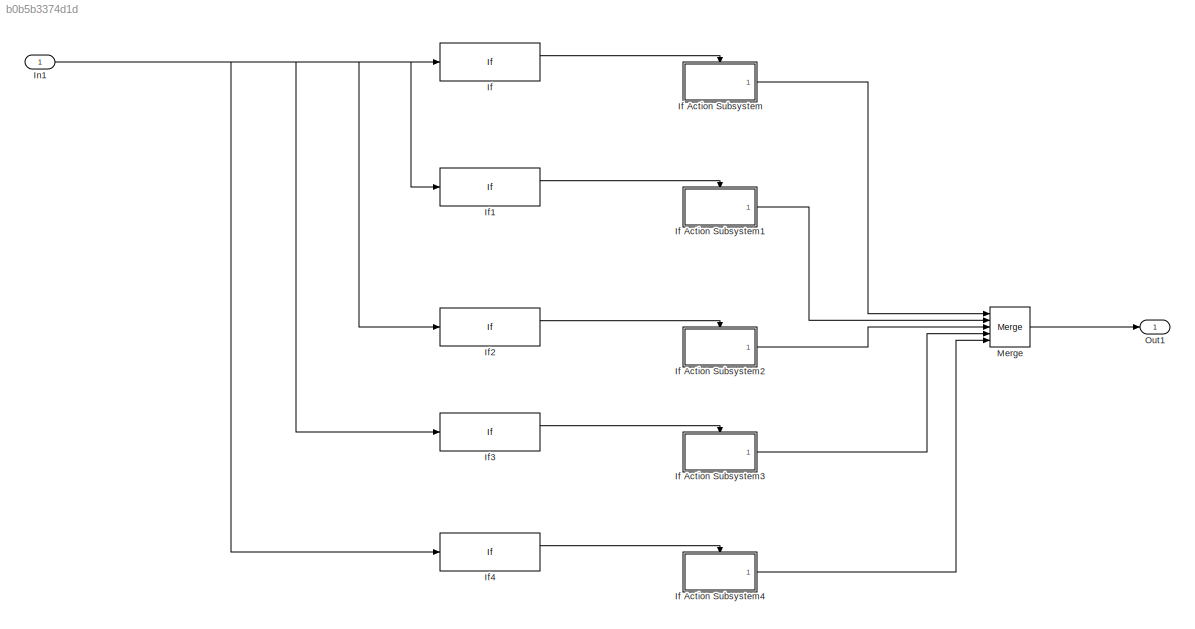
MODEL slx_b0b5b3374d1d
KIND model
CONFIG AbsTol = auto
CONFIG EnableMultiTasking = off
CONFIG FixedStep = auto
CONFIG MaxStep = auto
CONFIG MinStep = auto
CONFIG RelTol = 1e-3
CONFIG SampleTimeConstraint = Unconstrained
CONFIG Solver = VariableStepAuto
CONFIG SolverName = VariableStepAuto
CONFIG StartTime = 0.0
CONFIG StopTime = 10.0
BLOCK [If] If
  IfExpression = 85 > u1 < 100
  Ports = [1, 2]
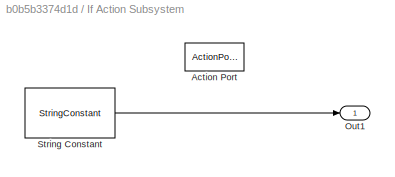
BLOCK [SubSystem] If Action Subsystem
  Ports = [0, 1, 0, 0, 0, 0, 0, 1]
  RequestExecContextInheritance = off
  TreatAsAtomicUnit = on
BLOCK [ActionPort] If Action Subsystem/Action Port
  ActionType = then
BLOCK [Outport] If Action Subsystem/Out1
  IconDisplay = Port number
BLOCK [StringConstant] If Action Subsystem/String Constant
  String = "Excellent"
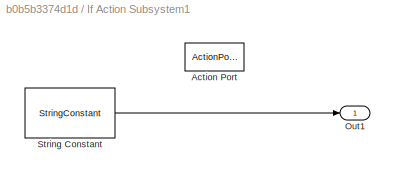
BLOCK [SubSystem] If Action Subsystem1
  Ports = [0, 1, 0, 0, 0, 0, 0, 1]
  RequestExecContextInheritance = off
  TreatAsAtomicUnit = on
BLOCK [ActionPort] If Action Subsystem1/Action Port
  ActionType = then
BLOCK [Outport] If Action Subsystem1/Out1
  IconDisplay = Port number
BLOCK [StringConstant] If Action Subsystem1/String Constant
  String = "VeryGood!"
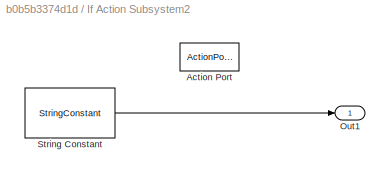
BLOCK [SubSystem] If Action Subsystem2
  Ports = [0, 1, 0, 0, 0, 0, 0, 1]
  RequestExecContextInheritance = off
  TreatAsAtomicUnit = on
BLOCK [ActionPort] If Action Subsystem2/Action Port
  ActionType = then
BLOCK [Outport] If Action Subsystem2/Out1
  IconDisplay = Port number
BLOCK [StringConstant] If Action Subsystem2/String Constant
  String = "Good!"
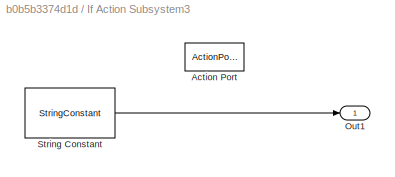
BLOCK [SubSystem] If Action Subsystem3
  Ports = [0, 1, 0, 0, 0, 0, 0, 1]
  RequestExecContextInheritance = off
  TreatAsAtomicUnit = on
BLOCK [ActionPort] If Action Subsystem3/Action Port
  ActionType = then
BLOCK [Outport] If Action Subsystem3/Out1
  IconDisplay = Port number
BLOCK [StringConstant] If Action Subsystem3/String Constant
  String = "Fair!"
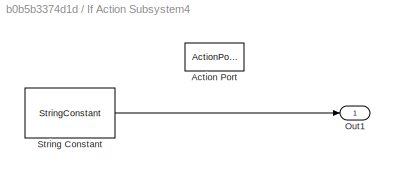
BLOCK [SubSystem] If Action Subsystem4
  Ports = [0, 1, 0, 0, 0, 0, 0, 1]
  RequestExecContextInheritance = off
  TreatAsAtomicUnit = on
BLOCK [ActionPort] If Action Subsystem4/Action Port
  ActionType = then
BLOCK [Outport] If Action Subsystem4/Out1
  IconDisplay = Port number
BLOCK [StringConstant] If Action Subsystem4/String Constant
  String = "Failed!"
BLOCK [If] If1
  IfExpression = 75 > u1 < 85
  Ports = [1, 2]
BLOCK [If] If2
  IfExpression = 65 > u1 < 75
  Ports = [1, 2]
BLOCK [If] If3
  IfExpression = 50 > u1 < 65
  Ports = [1, 2]
BLOCK [If] If4
  IfExpression = u1 < 50
  Ports = [1, 2]
BLOCK [Inport] In1
  IconDisplay = Port number
BLOCK [Merge] Merge
  Inputs = 5
  Ports = [5, 1]
BLOCK [Outport] Out1
  IconDisplay = Port number
LINE If Action Subsystem/String Constant:1 -> If Action Subsystem/Out1:1
LINE If Action Subsystem1/String Constant:1 -> If Action Subsystem1/Out1:1
LINE If Action Subsystem1:1 -> Merge:2
LINE If Action Subsystem2/String Constant:1 -> If Action Subsystem2/Out1:1
LINE If Action Subsystem2:1 -> Merge:3
LINE If Action Subsystem3/String Constant:1 -> If Action Subsystem3/Out1:1
LINE If Action Subsystem3:1 -> Merge:4
LINE If Action Subsystem4/String Constant:1 -> If Action Subsystem4/Out1:1
LINE If Action Subsystem4:1 -> Merge:5
LINE If Action Subsystem:1 -> Merge:1
LINE If1:1 -> If Action Subsystem1:ifaction
LINE If2:1 -> If Action Subsystem2:ifaction
LINE If3:1 -> If Action Subsystem3:ifaction
LINE If4:1 -> If Action Subsystem4:ifaction
LINE If:1 -> If Action Subsystem:ifaction
NET In1:1 -> If1:1, If2:1, If3:1, If4:1, If:1
LINE Merge:1 -> Out1:1
note: NET lines group one-source signal fan-out (src -> all destinations, sorted); 1:1 wires keep LINE
